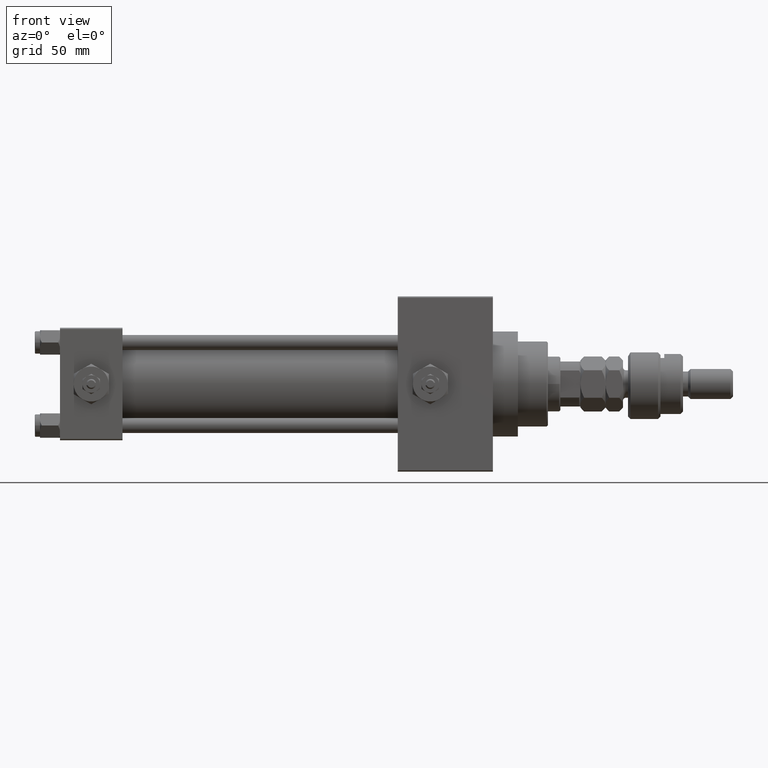
[diagram: clean part render]
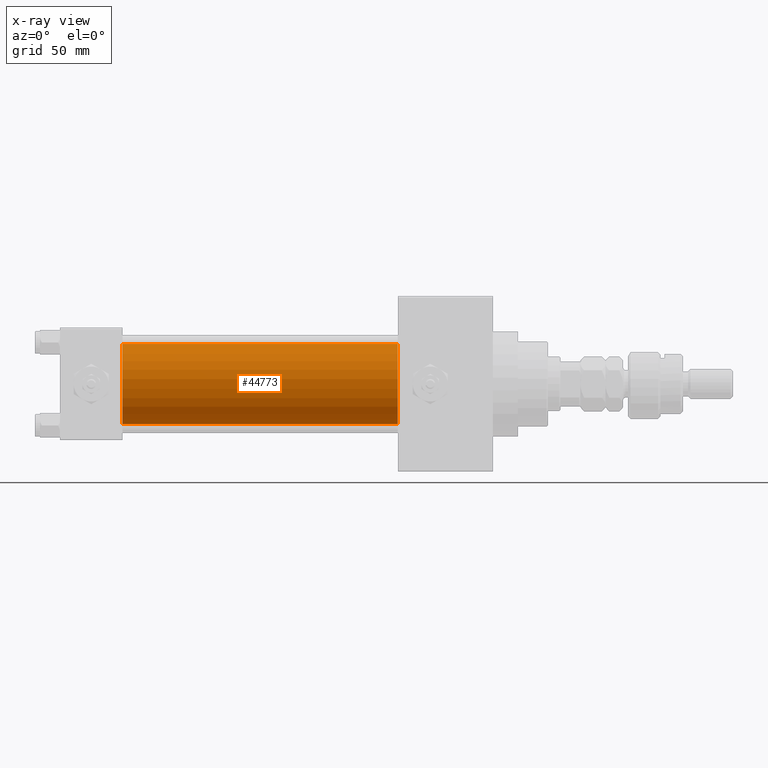
[diagram: x-ray — body ghosted, one internal face saturated and labeled with its STEP entity id]
A machine part, front view, then the same camera in x-ray: the body is ghosted and one INTERNAL B-rep face — a face not visible from any outside direction — is saturated and labeled: STEP entity #44773.
In plain terms, the highlighted cylindrical surface (partial cylindrical patch) has radius 16 mm, axis along (-1, -0, -0).
Its self-contained STEP definition (entity closure, byte-faithful):
#1343 = EDGE_CURVE ( 'NONE', #14409, #21143, #47227, .T. ) ;
#1935 = AXIS2_PLACEMENT_3D ( 'NONE', #38373, #10812, #18416 ) ;
#4338 = CARTESIAN_POINT ( 'NONE',  ( 25.00000000000000000, -6.426503353294456087E-16, -16.00000000000000000 ) ) ;
#5073 = DIRECTION ( 'NONE',  ( -1.000000000000000000, -0.000000000000000000, -0.000000000000000000 ) ) ;
#5247 = VECTOR ( 'NONE', #44946, 1000.000000000000000 ) ;
#6002 = DIRECTION ( 'NONE',  ( 0.000000000000000000, 0.000000000000000000, 1.000000000000000000 ) ) ;
#8207 = AXIS2_PLACEMENT_3D ( 'NONE', #14355, #46919, #50340 ) ;
#10812 = DIRECTION ( 'NONE',  ( 1.000000000000000000, 0.000000000000000000, 0.000000000000000000 ) ) ;
#13928 = ORIENTED_EDGE ( 'NONE', *, *, #1343, .T. ) ;
#14355 = CARTESIAN_POINT ( 'NONE',  ( 25.00000000000000000, -2.602085213965210642E-15, 0.000000000000000000 ) ) ;
#14394 = EDGE_CURVE ( 'NONE', #21143, #44232, #25024, .T. ) ;
#14409 = VERTEX_POINT ( 'NONE', #37348 ) ;
#15266 = CARTESIAN_POINT ( 'NONE',  ( 135.0000000000000000, -6.426503353294456087E-16, -16.00000000000000000 ) ) ;
#17084 = CARTESIAN_POINT ( 'NONE',  ( 135.0000000000000000, -2.602085213965210642E-15, 16.00000000000000000 ) ) ;
#17342 = ORIENTED_EDGE ( 'NONE', *, *, #14394, .T. ) ;
#18416 = DIRECTION ( 'NONE',  ( 0.000000000000000000, 0.000000000000000000, -1.000000000000000000 ) ) ;
#18554 = EDGE_CURVE ( 'NONE', #37098, #44232, #30870, .T. ) ;
#19390 = EDGE_LOOP ( 'NONE', ( #13928, #17342, #33331, #51580 ) ) ;
#19535 = AXIS2_PLACEMENT_3D ( 'NONE', #45913, #21239, #6002 ) ;
#21143 = VERTEX_POINT ( 'NONE', #15266 ) ;
#21239 = DIRECTION ( 'NONE',  ( -1.000000000000000000, -0.000000000000000000, -0.000000000000000000 ) ) ;
#25024 = LINE ( 'NONE', #33661, #45764 ) ;
#25960 = CYLINDRICAL_SURFACE ( 'NONE', #19535, 16.00000000000000000 ) ;
#30870 = CIRCLE ( 'NONE', #8207, 16.00000000000000000 ) ;
#33114 = LINE ( 'NONE', #17084, #5247 ) ;
#33331 = ORIENTED_EDGE ( 'NONE', *, *, #18554, .F. ) ;
#33661 = CARTESIAN_POINT ( 'NONE',  ( 135.0000000000000000, -6.426503353294456087E-16, -16.00000000000000000 ) ) ;
#37098 = VERTEX_POINT ( 'NONE', #40807 ) ;
#37348 = CARTESIAN_POINT ( 'NONE',  ( 135.0000000000000000, -2.602085213965210642E-15, 16.00000000000000000 ) ) ;
#38373 = CARTESIAN_POINT ( 'NONE',  ( 135.0000000000000000, -2.602085213965210642E-15, 0.000000000000000000 ) ) ;
#40807 = CARTESIAN_POINT ( 'NONE',  ( 25.00000000000000000, -2.602085213965210642E-15, 16.00000000000000000 ) ) ;
#41978 = FACE_OUTER_BOUND ( 'NONE', #19390, .T. ) ;
#43743 = EDGE_CURVE ( 'NONE', #14409, #37098, #33114, .T. ) ;
#44232 = VERTEX_POINT ( 'NONE', #4338 ) ;
#44773 = ADVANCED_FACE ( 'NONE', ( #41978 ), #25960, .F. ) ;
#44946 = DIRECTION ( 'NONE',  ( -1.000000000000000000, -0.000000000000000000, -0.000000000000000000 ) ) ;
#45764 = VECTOR ( 'NONE', #5073, 1000.000000000000000 ) ;
#45913 = CARTESIAN_POINT ( 'NONE',  ( 135.0000000000000000, -2.602085213965210642E-15, 0.000000000000000000 ) ) ;
#46919 = DIRECTION ( 'NONE',  ( 1.000000000000000000, 0.000000000000000000, 0.000000000000000000 ) ) ;
#47227 = CIRCLE ( 'NONE', #1935, 16.00000000000000000 ) ;
#50340 = DIRECTION ( 'NONE',  ( 0.000000000000000000, 0.000000000000000000, -1.000000000000000000 ) ) ;
#51580 = ORIENTED_EDGE ( 'NONE', *, *, #43743, .F. ) ;